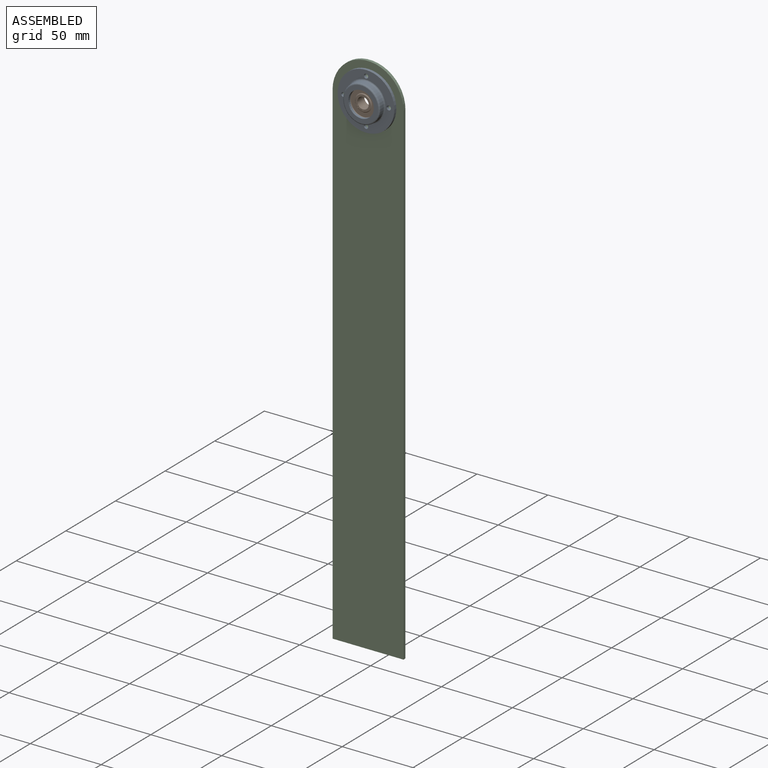
[diagram: assembled view]
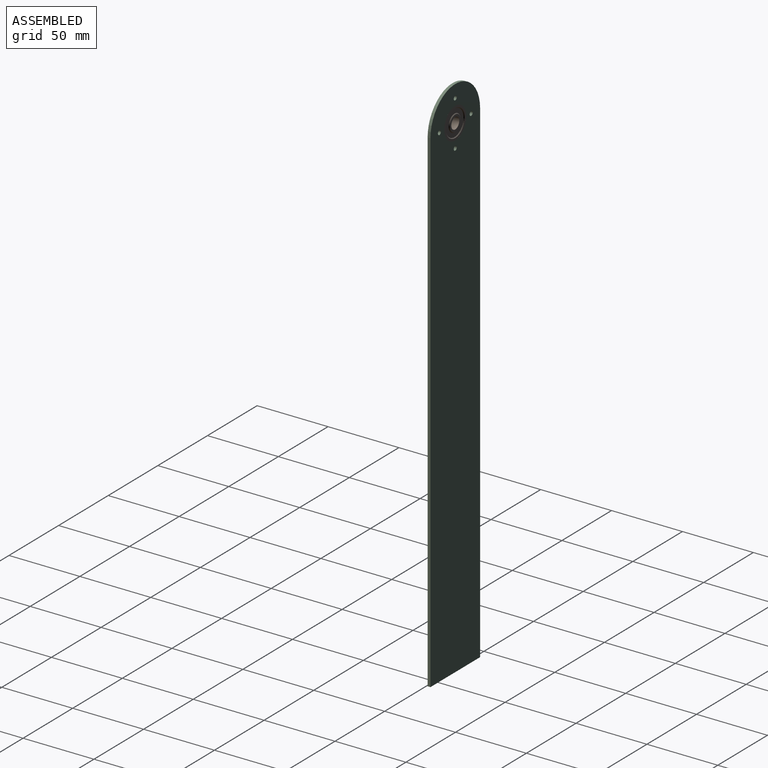
[diagram: assembled view, second angle]
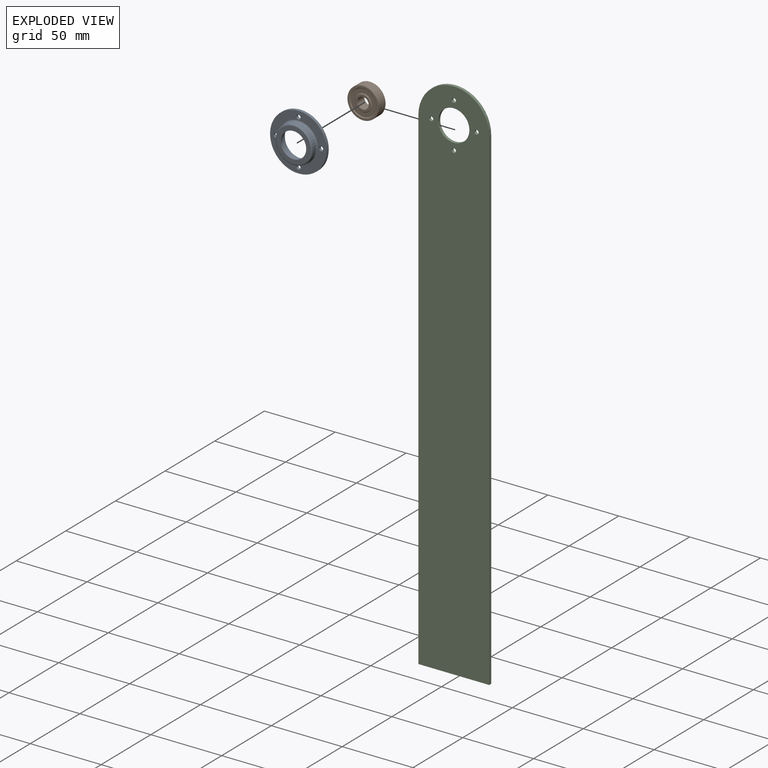
[diagram: exploded view]
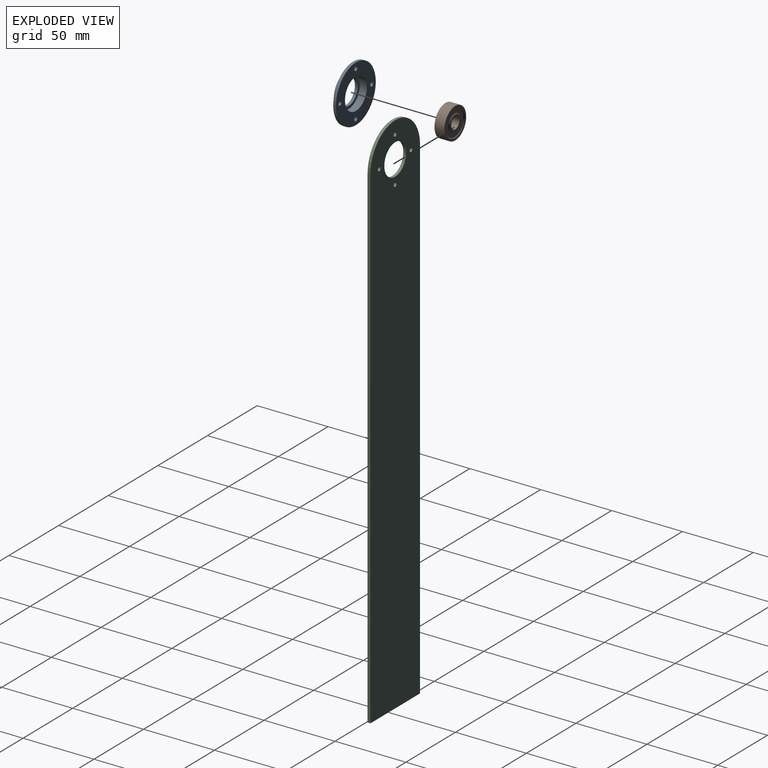
[diagram: exploded view, second angle]
ASSEMBLY  parts=3 mates=2
PART A: 14 faces, bbox 7x40x40 mm
  f0: plane 22x22mm, normal (1,0,0), area 125.7mm2, adj f1,f7
  f1: cylinder r=11mm len=22mm, axis (1,0,0), area 345.6mm2, adj f0,f2
  f2: plane 40x40mm, normal (1,0,0), area 848.2mm2, adj f1,f3,f8,f9,f10,f11
  f3: cylinder r=20mm len=40mm, axis (1,0,0), area 251.3mm2, adj f2,f4
  f4: plane 40x40mm, normal (-1,0,0), area 612.6mm2, adj f3,f8,f9,f10,f11,f12
  f5: cylinder r=13mm len=26mm, axis (1,0,0), area 245mm2, adj f12,f13
  f6: plane 24x24mm, normal (-1,0,0), area 197.9mm2, adj f7,f13
  f7: cylinder r=9mm len=18mm, axis (1,0,0), area 113.1mm2, adj f0,f6
  f8: cylinder r=1.5mm len=3mm, axis (-1,0,0), area 18.8mm2, adj f2,f4
  f9: cylinder r=1.5mm len=3mm, axis (-1,0,0), area 18.8mm2, adj f2,f4
  f10: cylinder r=1.5mm len=3mm, axis (-1,0,0), area 18.8mm2, adj f2,f4
  f11: cylinder r=1.5mm len=3mm, axis (-1,0,0), area 18.8mm2, adj f2,f4
  f12: torus R=14mm, axis (-1,0,0), area 131.9mm2, adj f4,f5
  f13: torus R=12mm, axis (1,0,0), area 124.7mm2, adj f5,f6
PART B: 113 faces, bbox 7x22x22 mm
  f0: plane 11x11mm, normal (1,0,0), area 41.4mm2, adj f3,f4,f12,f13,f14,f15,f16,f17
  f1: cone r=5.5mm half-angle=45deg, axis (1,0,0), area 25.5mm2, adj f2,f11
  f2: plane 11x11mm, normal (-1,0,0), area 44.8mm2, adj f1,f3
  f3: cylinder r=4mm len=8mm, axis (-1,0,0), area 175.9mm2, adj f0,f2
  f4: cone r=5.5mm half-angle=45deg, axis (-1,0,0), area 25.5mm2, adj f0,f5
  f5: plane 18x18mm, normal (1,0,0), area 141.4mm2, adj f4,f6
  f6: cone r=9mm half-angle=45deg, axis (1,0,0), area 41.1mm2, adj f5,f7
  f7: plane 22x22mm, normal (1,0,0), area 96.6mm2, adj f6,f8
  f8: cylinder r=11mm len=22mm, axis (-1,0,0), area 483.8mm2, adj f7,f9
  f9: plane 22x22mm, normal (-1,0,0), area 96.6mm2, adj f8,f10
  f10: cone r=9mm half-angle=45deg, axis (-1,0,0), area 41.1mm2, adj f9,f11
  f11: plane 18x18mm, normal (-1,0,0), area 141.4mm2, adj f1,f10
  f12: plane 0.86x0.24mm, normal (0,0.27,0.96), area 0.1mm2, adj f0,f13,f21,f22
  f13: plane 0.13x0.1mm, normal (0,-0.96,0.27), area 0mm2, adj f0,f12,f14,f22
  f14: plane 0.68x0.19mm, normal (0,-0.27,-0.96), area 0.1mm2, adj f0,f13,f15,f22
  f15: plane 0.94x0.82mm, normal (0,-0.66,0.75), area 0.1mm2, adj f0,f14,f16,f22
  f16: plane 0.11x0.1mm, normal (0,-0.96,0.27), area 0mm2, adj f0,f15,f17,f22
  f17: plane 0.82x0.23mm, normal (0,-0.27,-0.96), area 0.1mm2, adj f0,f16,f18,f22
  f18: plane 0.13x0.1mm, normal (0,0.96,-0.27), area 0mm2, adj f0,f17,f19,f22
  f19: plane 0.64x0.18mm, normal (0,0.27,0.96), area 0.1mm2, adj f0,f18,f20,f22
  f20: plane 0.94x0.82mm, normal (0,0.66,-0.75), area 0.1mm2, adj f0,f19,f21,f22
  f21: plane 0.11x0.1mm, normal (0,0.96,-0.27), area 0mm2, adj f0,f12,f20,f22
  f22: plane 1.48x1.19mm, normal (1,0,0), area 0.4mm2, adj f12,f13,f14,f15,f16,f17,f18,f19
  f23: extruded ~0.17x0.1mm, area 0mm2, adj f24,f53,f54,f110
  f24: extruded ~0.18x0.1mm, area 0mm2, adj f23,f25,f54,f110
  f25: extruded ~0.14x0.1mm, area 0mm2, adj f24,f26,f54,f110
  f26: extruded ~0.14x0.1mm, area 0mm2, adj f25,f27,f54,f110
  f27: extruded ~0.18x0.11mm, area 0mm2, adj f26,f28,f54,f110
  f28: extruded ~0.19x0.12mm, area 0mm2, adj f27,f29,f54,f110
  f29: extruded ~0.14x0.1mm, area 0mm2, adj f28,f53,f54,f110
  f30: extruded ~0.17x0.1mm, area 0mm2, adj f31,f51,f54,f55
  f31: extruded ~0.16x0.1mm, area 0mm2, adj f30,f32,f54,f55
  f32: extruded ~0.19x0.13mm, area 0mm2, adj f31,f33,f54,f55
  f33: extruded ~0.24x0.13mm, area 0mm2, adj f32,f34,f54,f55
  f34: extruded ~0.15x0.1mm, area 0mm2, adj f33,f35,f54,f55
  f35: extruded ~0.17x0.1mm, area 0mm2, adj f34,f36,f54,f55
  f36: extruded ~0.21x0.1mm, area 0mm2, adj f35,f51,f54,f55
  f37: extruded ~0.28x0.1mm, area 0mm2, adj f0,f38,f52,f54
  f38: extruded ~0.28x0.1mm, area 0mm2, adj f0,f37,f39,f54
  f39: extruded ~0.22x0.1mm, area 0mm2, adj f0,f38,f40,f54
  f40: extruded ~0.18x0.1mm, area 0mm2, adj f0,f39,f41,f54
  f41: extruded ~0.18x0.15mm, area 0mm2, adj f0,f40,f42,f54
  f42: extruded ~0.35x0.27mm, area 0mm2, adj f0,f41,f43,f54
  f43: extruded ~0.26x0.11mm, area 0mm2, adj f0,f42,f44,f54
  f44: extruded ~0.32x0.1mm, area 0mm2, adj f0,f43,f45,f54
  f45: extruded ~0.31x0.1mm, area 0mm2, adj f0,f44,f46,f54
  f46: extruded ~0.26x0.11mm, area 0mm2, adj f0,f45,f47,f54
  f47: extruded ~0.19x0.1mm, area 0mm2, adj f0,f46,f48,f54
  f48: extruded ~0.22x0.16mm, area 0mm2, adj f0,f47,f49,f54
  f49: extruded ~0.19x0.14mm, area 0mm2, adj f0,f48,f50,f54
  f50: extruded ~0.17x0.1mm, area 0mm2, adj f0,f49,f52,f54
  f51: extruded ~0.21x0.1mm, area 0mm2, adj f30,f36,f54,f55
  f52: extruded ~0.23x0.1mm, area 0mm2, adj f0,f37,f50,f54
  f53: extruded ~0.14x0.1mm, area 0mm2, adj f23,f29,f54,f110
  f54: plane 1.33x0.85mm, normal (1,0,0), area 0.5mm2, adj f23,f24,f25,f26,f27,f28,f29,f30
  f55: plane 0.56x0.51mm, normal (1,0,0), area 0.2mm2, adj f30,f31,f32,f33,f34,f35,f36,f51
  f56: extruded ~0.38x0.17mm, area 0mm2, adj f57,f71,f72,f111
  f57: extruded ~0.41x0.1mm, area 0mm2, adj f56,f58,f72,f111
  f58: extruded ~0.18x0.17mm, area 0mm2, adj f57,f59,f72,f111
  f59: extruded ~0.24x0.1mm, area 0mm2, adj f58,f60,f72,f111
  f60: extruded ~0.38x0.17mm, area 0mm2, adj f59,f61,f72,f111
  f61: extruded ~0.41x0.1mm, area 0mm2, adj f60,f62,f72,f111
  f62: extruded ~0.18x0.17mm, area 0mm2, adj f61,f71,f72,f111
  f63: extruded ~0.51x0.1mm, area 0.1mm2, adj f0,f64,f70,f72
  f64: extruded ~0.45x0.23mm, area 0.1mm2, adj f0,f63,f65,f72
  f65: extruded ~0.35x0.1mm, area 0mm2, adj f0,f64,f66,f72
  f66: extruded ~0.27x0.24mm, area 0mm2, adj f0,f65,f67,f72
  f67: extruded ~0.51x0.1mm, area 0.1mm2, adj f0,f66,f68,f72
  f68: extruded ~0.45x0.23mm, area 0.1mm2, adj f0,f67,f69,f72
  f69: extruded ~0.35x0.1mm, area 0mm2, adj f0,f68,f70,f72
  f70: extruded ~0.27x0.24mm, area 0mm2, adj f0,f63,f69,f72
  f71: extruded ~0.24x0.1mm, area 0mm2, adj f56,f62,f72,f111
  f72: plane 1.36x0.97mm, normal (1,0,0), area 0.4mm2, adj f56,f57,f58,f59,f60,f61,f62,f63
  f73: extruded ~0.17x0.13mm, area 0mm2, adj f74,f97,f98,f112
  f74: extruded ~0.15x0.1mm, area 0mm2, adj f73,f75,f98,f112
  f75: extruded ~0.15x0.1mm, area 0mm2, adj f74,f76,f98,f112
  f76: extruded ~0.13x0.12mm, area 0mm2, adj f75,f77,f98,f112
  f77: extruded ~0.12x0.1mm, area 0mm2, adj f76,f78,f98,f112
  f78: extruded ~0.13x0.1mm, area 0mm2, adj f77,f79,f98,f112
  f79: extruded ~0.11x0.1mm, area 0mm2, adj f78,f80,f98,f112
  f80: extruded ~0.2x0.1mm, area 0mm2, adj f79,f81,f98,f112
  f81: extruded ~0.16x0.14mm, area 0mm2, adj f80,f97,f98,f112
  f82: extruded ~0.57x0.16mm, area 0.1mm2, adj f0,f83,f96,f98
  f83: extruded ~0.31x0.31mm, area 0mm2, adj f0,f82,f84,f98
  f84: extruded ~0.35x0.1mm, area 0mm2, adj f0,f83,f85,f98
  f85: extruded ~0.25x0.2mm, area 0mm2, adj f0,f84,f86,f98
  f86: extruded ~0.33x0.1mm, area 0mm2, adj f0,f85,f87,f98
  f87: extruded ~0.23x0.2mm, area 0mm2, adj f0,f86,f88,f98
  f88: extruded ~0.29x0.1mm, area 0mm2, adj f0,f87,f89,f98
  f89: extruded ~0.29x0.19mm, area 0mm2, adj f0,f88,f90,f98
  f90: plane 0.1x0.01mm, normal (0,0.49,-0.87), area 0mm2, adj f0,f89,f91,f98
  f91: extruded ~0.42x0.1mm, area 0mm2, adj f0,f90,f92,f98
  f92: extruded ~0.27x0.21mm, area 0mm2, adj f0,f91,f93,f98
  f93: extruded ~0.15x0.1mm, area 0mm2, adj f0,f92,f94,f98
  f94: plane 0.11x0.1mm, normal (0,-0.87,-0.49), area 0mm2, adj f0,f93,f95,f98
  f95: extruded ~0.15x0.1mm, area 0mm2, adj f0,f94,f96,f98
  f96: extruded ~0.38x0.29mm, area 0mm2, adj f0,f82,f95,f98
  f97: extruded ~0.23x0.1mm, area 0mm2, adj f73,f81,f98,f112
  f98: plane 1.37x1.07mm, normal (1,0,0), area 0.4mm2, adj f73,f74,f75,f76,f77,f78,f79,f80
  f99: plane 0.77x0.45mm, normal (0,0.51,0.86), area 0.1mm2, adj f0,f100,f108,f109
  f100: plane 0.12x0.1mm, normal (0,-0.86,0.51), area 0mm2, adj f0,f99,f101,f109
  f101: plane 0.61x0.36mm, normal (0,-0.51,-0.86), area 0.1mm2, adj f0,f100,f102,f109
  f102: plane 1.12x0.55mm, normal (0,-0.44,0.9), area 0.1mm2, adj f0,f101,f103,f109
  f103: plane 0.1x0.1mm, normal (0,-0.86,0.51), area 0mm2, adj f0,f102,f104,f109
  f104: plane 0.73x0.43mm, normal (0,-0.51,-0.86), area 0.1mm2, adj f0,f103,f105,f109
  f105: plane 0.12x0.1mm, normal (0,0.86,-0.51), area 0mm2, adj f0,f104,f106,f109
  f106: plane 0.58x0.34mm, normal (0,0.51,0.86), area 0.1mm2, adj f0,f105,f107,f109
  f107: plane 1.12x0.55mm, normal (0,0.44,-0.9), area 0.1mm2, adj f0,f106,f108,f109
  f108: plane 0.1x0.1mm, normal (0,0.86,-0.51), area 0mm2, adj f0,f99,f107,f109
  f109: plane 1.56x1.41mm, normal (1,0,0), area 0.4mm2, adj f99,f100,f101,f102,f103,f104,f105,f106
  f110: plane 0.48x0.45mm, normal (1,0,0), area 0.2mm2, adj f23,f24,f25,f26,f27,f28,f29,f53
  f111: plane 1.09x0.67mm, normal (1,0,0), area 0.5mm2, adj f56,f57,f58,f59,f60,f61,f62,f71
  f112: plane 0.6x0.59mm, normal (1,0,0), area 0.3mm2, adj f73,f74,f75,f76,f77,f78,f79,f80
PART C: 11 faces, bbox 50x2x375 mm
  f0: plane 350x2mm, normal (-1,0,0), area 700mm2, adj f1,f8,f9,f10
  f1: plane 50x2mm, normal (0,0,-1), area 100mm2, adj f0,f2,f9,f10
  f2: plane 350x2mm, normal (1,0,0), area 700mm2, adj f1,f8,f9,f10
  f3: cylinder r=11mm len=22mm, axis (0,1,0), area 138.2mm2, adj f9,f10
  f4: cylinder r=1.5mm len=3mm, axis (0,1,0), area 18.8mm2, adj f9,f10
  f5: cylinder r=1.5mm len=3mm, axis (0,1,0), area 18.8mm2, adj f9,f10
  f6: cylinder r=1.5mm len=3mm, axis (0,1,0), area 18.8mm2, adj f9,f10
  f7: cylinder r=1.5mm len=3mm, axis (0,1,0), area 18.8mm2, adj f9,f10
  f8: cylinder r=25mm len=50mm, axis (0,1,0), area 157.1mm2, adj f0,f2,f9,f10
  f9: plane 375x50mm, normal (0,-1,0), area 18073.3mm2, adj f0,f1,f2,f3,f4,f5,f6,f7
  f10: plane 375x50mm, normal (0,1,0), area 18073.3mm2, adj f0,f1,f2,f3,f4,f5,f6,f7
PLACE A rot(axis=(-0.58,-0.58,0.58),120deg) t=(-107.24,-47.22,284.99)mm
PLACE B rot(axis=(0.7,-0.7,-0.18),159.6deg) t=(-107.24,-43.72,284.99)mm
PLACE C t=(-107.24,-40.22,-65.01)mm fixed
MATE fastened A.f8 <-> C.f4  axis (0,1,0) through (-107.24,-42.22,300.99)mm
MATE revolute B.f1 <-> A.f1  axis (0,1,0) through (-107.24,-47.22,284.99)mm
